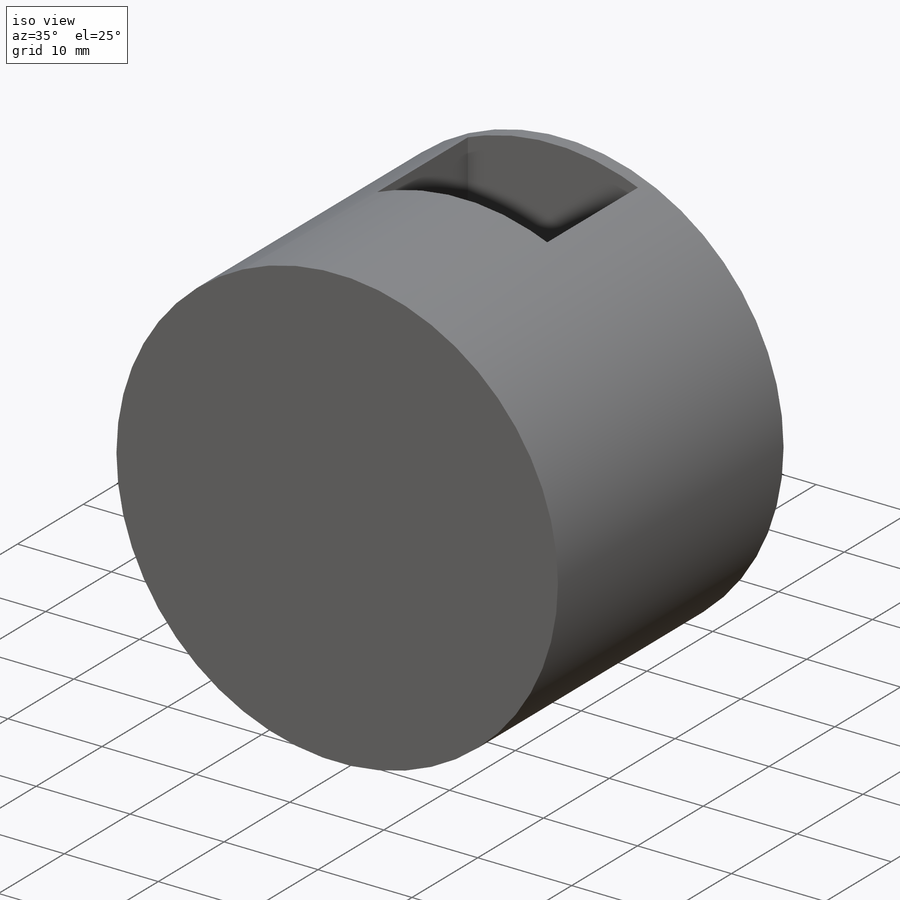
[diagram: iso view]
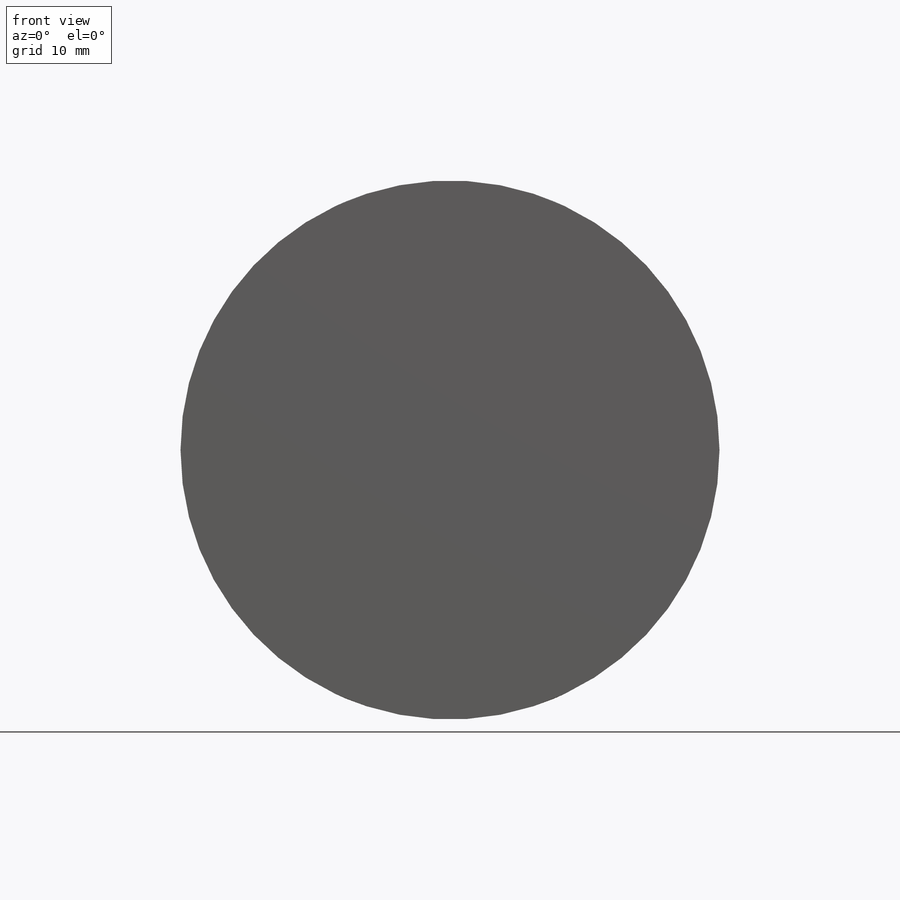
[diagram: front view]
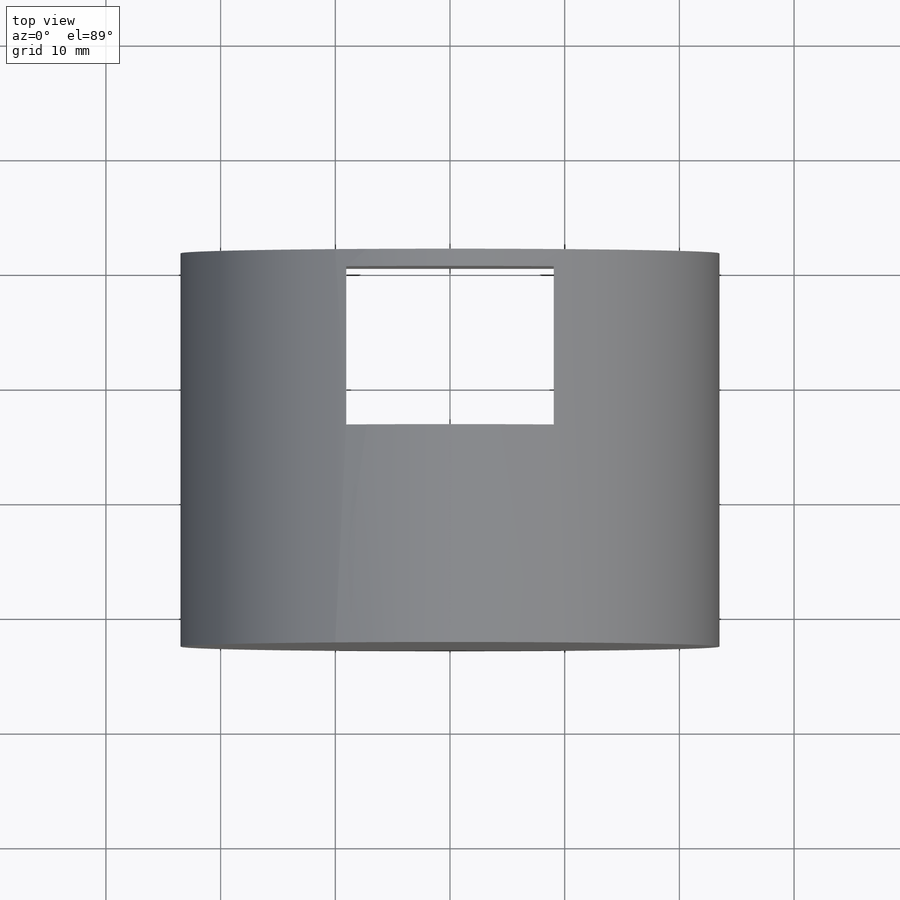
[diagram: top view]
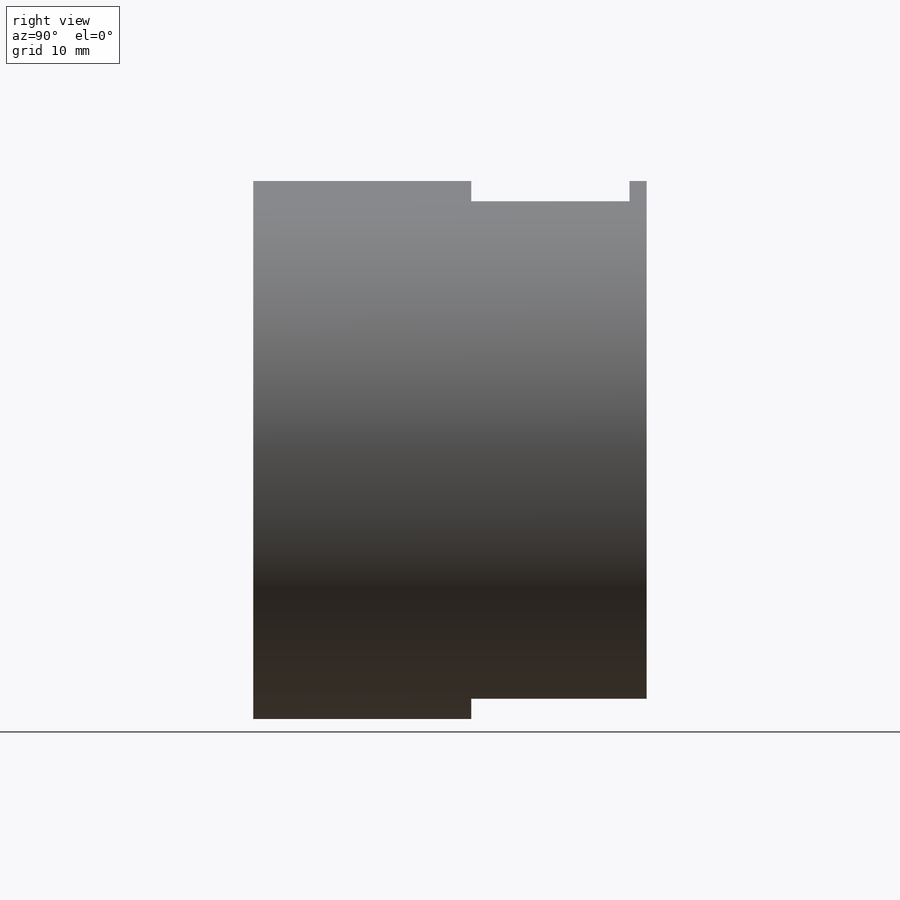
[diagram: right view]
SOLIDWORKS PART (.sldprt)
format: sldprt  version: not decoded by parser v0  size: 324,096 bytes
history: native  units: mm
features: sketch x4, extrude x2, cut_extrude x2, material x1 (+12 scaffold rows collapsed)
feature tree (21):
  scaffold x12  (default folders/planes/origin — collapsed)
  material  "Material <not specified>"
  sketch  "Sketch1"  dims[D1=47.0mm]
  extrude  "Boss-Extrude1"  Depth=32.8mm
  sketch  "Sketch5"  dims[D6=1.0mm D8=1.0mm D1=47.0mm D2=23.5mm D3=18.1mm D4=9.05mm D5=0.0mm D7=~13.064413mm]
  cut_extrude  "Cut-Extrude1"  Depth=13.8mm
  sketch  "Sketch6"  dims[D1=47.0mm]
  extrude  "Boss-Extrude2"  Depth=1.5mm
  sketch  "Sketch8"  dims[D2=8.2mm D1=0.0mm]
  cut_extrude  "Cut-Extrude5"  Depth=1.5mm
decode coverage: 8 of 8 modeling features carry decoded parameters
note: ~ marks probable driven/reference dimensions
note: suppression state not decoded; provenance and decode notes live in map.json
